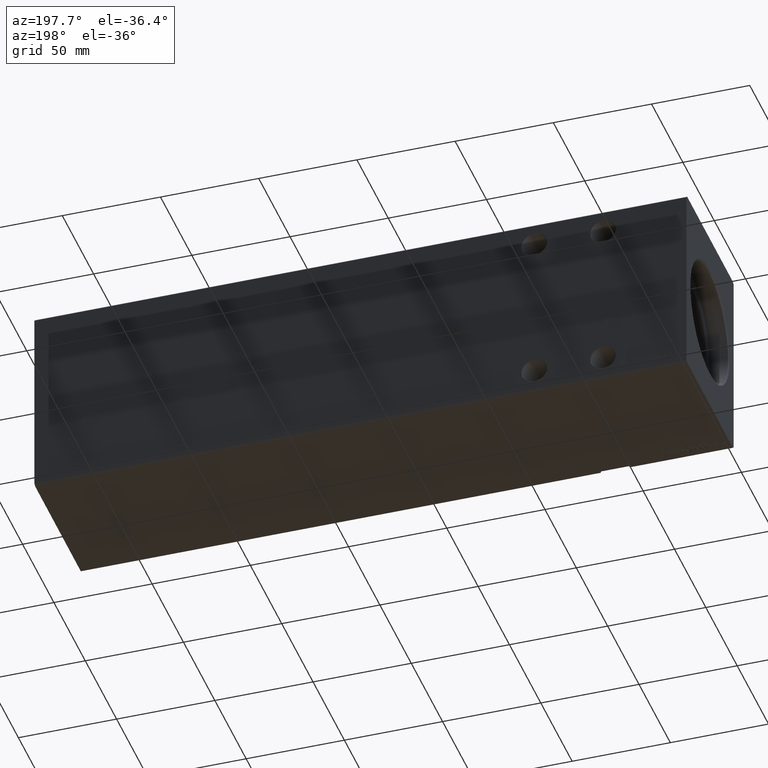
[diagram: clean part render]
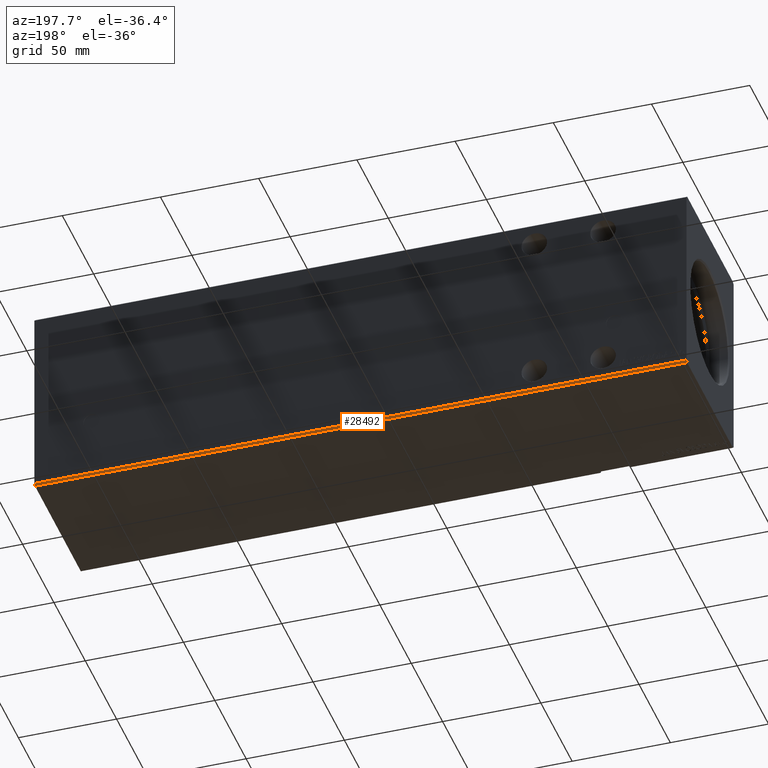
[diagram: same view with one face highlighted and labeled with its STEP entity id]
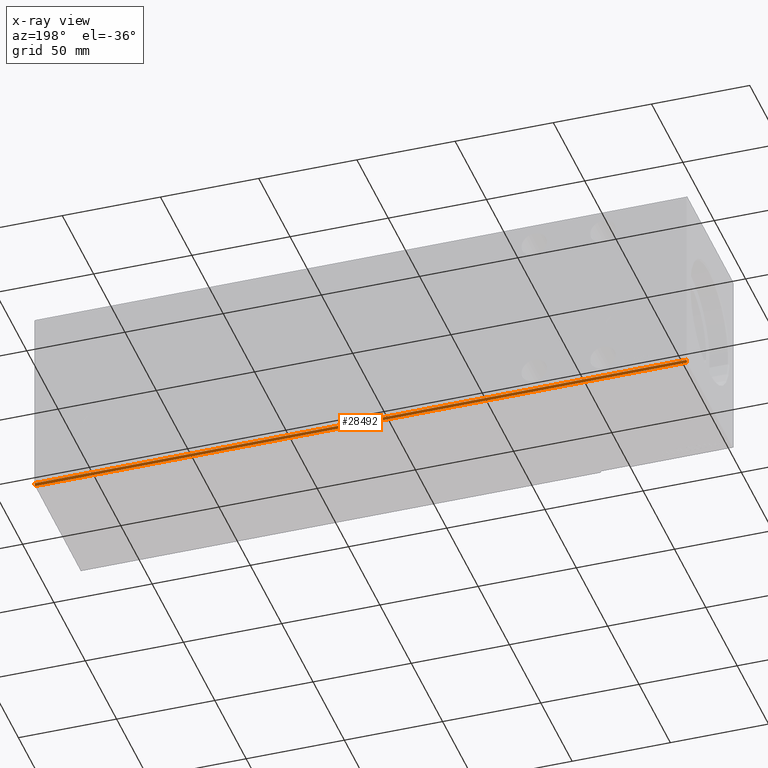
[diagram: x-ray of the same camera — body ghosted, the highlighted face saturated]
A machine part, auxiliary view. The second image highlights one B-rep face of the part: STEP entity #28492.
The next image is the same camera in x-ray: the body ghosted, the highlighted face saturated — about 0% of this face is hidden behind the body in this view.
In plain terms, the highlighted planar face has unit normal (0, -0.7071, 0.7071).
Its self-contained STEP definition (entity closure, byte-faithful):
#1285 = CARTESIAN_POINT ( 'NONE',  ( 332.0000000000000000, 36.50000000000000711, -50.00000000000000000 ) ) ;
#5894 = CARTESIAN_POINT ( 'NONE',  ( 0.000000000000000000, 37.50000000000000711, -49.00000000000000000 ) ) ;
#5932 = CARTESIAN_POINT ( 'NONE',  ( 332.0000000000000000, 36.50000000000000711, -50.00000000000000000 ) ) ;
#6593 = CARTESIAN_POINT ( 'NONE',  ( 0.000000000000000000, 36.50000000000000711, -50.00000000000000000 ) ) ;
#7812 = LINE ( 'NONE', #8430, #25558 ) ;
#8285 = LINE ( 'NONE', #5932, #32492 ) ;
#8360 = PLANE ( 'NONE',  #39435 ) ;
#8430 = CARTESIAN_POINT ( 'NONE',  ( 332.0000000000000000, 37.50000000000000711, -49.00000000000000000 ) ) ;
#8693 = DIRECTION ( 'NONE',  ( 0.000000000000000000, 0.7071067811865474617, 0.7071067811865474617 ) ) ;
#8975 = ORIENTED_EDGE ( 'NONE', *, *, #41429, .T. ) ;
#9999 = DIRECTION ( 'NONE',  ( -1.000000000000000000, -0.000000000000000000, -0.000000000000000000 ) ) ;
#11739 = CARTESIAN_POINT ( 'NONE',  ( 332.0000000000000000, 36.50000000000000711, -50.00000000000000000 ) ) ;
#14062 = VERTEX_POINT ( 'NONE', #1285 ) ;
#15136 = FACE_OUTER_BOUND ( 'NONE', #37751, .T. ) ;
#15911 = CARTESIAN_POINT ( 'NONE',  ( 0.000000000000000000, 36.50000000000000711, -50.00000000000000000 ) ) ;
#16527 = VERTEX_POINT ( 'NONE', #19513 ) ;
#18408 = EDGE_CURVE ( 'NONE', #14062, #16527, #8285, .T. ) ;
#19513 = CARTESIAN_POINT ( 'NONE',  ( 332.0000000000000000, 37.50000000000000711, -49.00000000000000000 ) ) ;
#21970 = EDGE_CURVE ( 'NONE', #30527, #27247, #34670, .T. ) ;
#25558 = VECTOR ( 'NONE', #27579, 1000.000000000000000 ) ;
#27247 = VERTEX_POINT ( 'NONE', #5894 ) ;
#27503 = DIRECTION ( 'NONE',  ( 0.000000000000000000, -0.7071067811865474617, -0.7071067811865474617 ) ) ;
#27579 = DIRECTION ( 'NONE',  ( -1.000000000000000000, -0.000000000000000000, -0.000000000000000000 ) ) ;
#27966 = ORIENTED_EDGE ( 'NONE', *, *, #39700, .F. ) ;
#28492 = ADVANCED_FACE ( 'NONE', ( #15136 ), #8360, .F. ) ;
#29372 = CARTESIAN_POINT ( 'NONE',  ( 332.0000000000000000, 36.50000000000000711, -50.00000000000000000 ) ) ;
#29465 = ORIENTED_EDGE ( 'NONE', *, *, #21970, .T. ) ;
#30527 = VERTEX_POINT ( 'NONE', #6593 ) ;
#30910 = DIRECTION ( 'NONE',  ( 0.000000000000000000, -0.7071067811865475727, 0.7071067811865475727 ) ) ;
#32492 = VECTOR ( 'NONE', #8693, 1000.000000000000114 ) ;
#34670 = LINE ( 'NONE', #15911, #37887 ) ;
#35079 = DIRECTION ( 'NONE',  ( 0.000000000000000000, 0.7071067811865474617, 0.7071067811865474617 ) ) ;
#35450 = ORIENTED_EDGE ( 'NONE', *, *, #18408, .F. ) ;
#37751 = EDGE_LOOP ( 'NONE', ( #29465, #27966, #35450, #8975 ) ) ;
#37887 = VECTOR ( 'NONE', #35079, 1000.000000000000114 ) ;
#38374 = VECTOR ( 'NONE', #9999, 1000.000000000000000 ) ;
#39138 = LINE ( 'NONE', #29372, #38374 ) ;
#39435 = AXIS2_PLACEMENT_3D ( 'NONE', #11739, #30910, #27503 ) ;
#39700 = EDGE_CURVE ( 'NONE', #16527, #27247, #7812, .T. ) ;
#41429 = EDGE_CURVE ( 'NONE', #14062, #30527, #39138, .T. ) ;